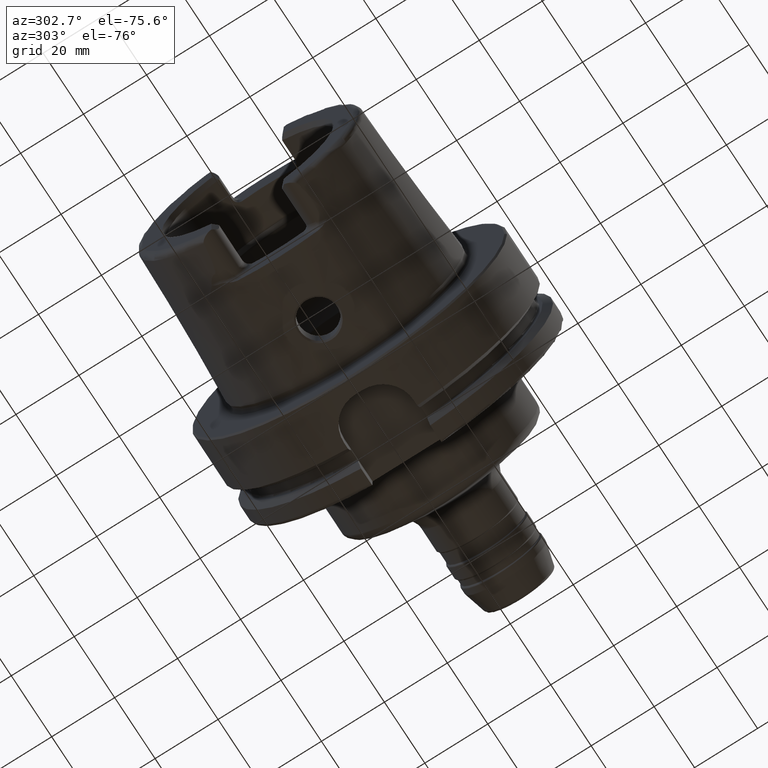
[diagram: clean part render]
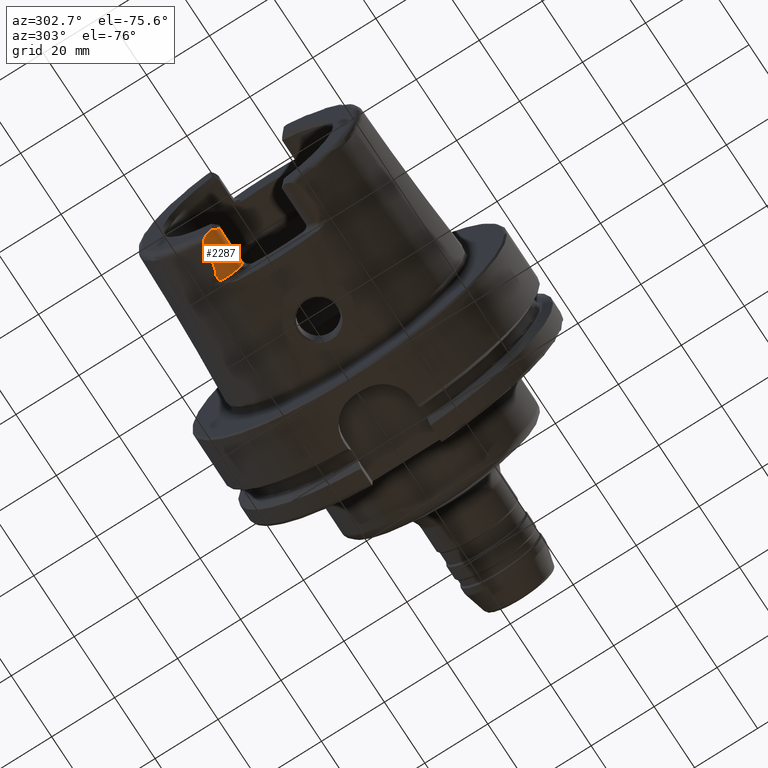
[diagram: same view with one face highlighted and labeled with its STEP entity id]
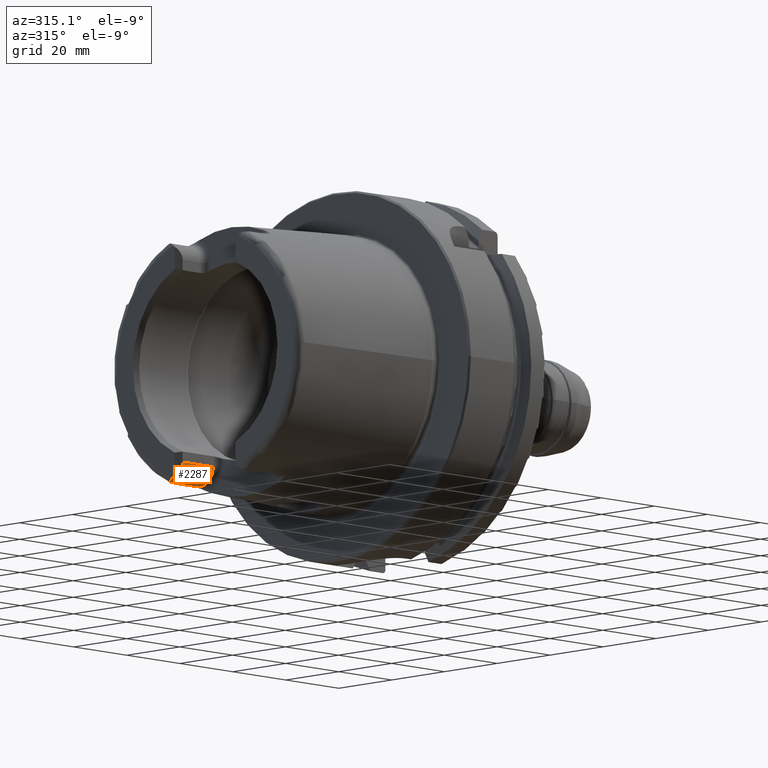
[diagram: same view with one face highlighted and labeled with its STEP entity id]
A machine part, auxiliary view. The second image highlights one B-rep face of the part: STEP entity #2287.
A second angle (auxiliary view) of the same face is appended — the face is thin or edge-on in the first view.
In plain terms, the highlighted cylindrical surface (edge-blend (fillet) strip) has radius 4.88 mm, axis along (-1, 0, 0).
Its self-contained STEP definition (entity closure, byte-faithful):
#31=B_SPLINE_CURVE_WITH_KNOTS('',3,(#3694,#3695,#3696,#3697,#3698,#3699,
#3700,#3701,#3702,#3703,#3704,#3705),.UNSPECIFIED.,.F.,.F.,(4,2,2,2,2,4),
(-0.744485085130335,-0.701284148098614,-0.656581713087918,-0.531183195108729,
-0.406814905045398,-0.320767863003946),.UNSPECIFIED.);
#32=B_SPLINE_CURVE_WITH_KNOTS('',3,(#3707,#3708,#3709,#3710,#3711,#3712,
#3713,#3714,#3715,#3716,#3717,#3718,#3719,#3720,#3721,#3722,#3723,#3724),
 .UNSPECIFIED.,.F.,.F.,(4,2,2,2,2,2,2,2,4),(1.82139636410114,1.83165892733975,
1.84192149057836,1.86244661705558,1.93660019990987,2.01075378276416,2.21475865094393,
2.41876351912369,2.7012608097453),.UNSPECIFIED.);
#85=ELLIPSE('',#2515,6.90136218438071,4.88);
#231=FACE_OUTER_BOUND('',#369,.T.);
#369=EDGE_LOOP('',(#1668,#1669,#1670,#1671,#1672,#1673,#1674,#1675));
#501=LINE('',#3686,#612);
#504=LINE('',#3726,#615);
#612=VECTOR('',#2972,10.);
#615=VECTOR('',#2979,10.);
#770=CIRCLE('',#2519,4.88);
#771=CIRCLE('',#2520,4.88);
#772=CIRCLE('',#2521,4.88);
#944=VERTEX_POINT('',#3676);
#945=VERTEX_POINT('',#3677);
#948=VERTEX_POINT('',#3685);
#950=VERTEX_POINT('',#3691);
#951=VERTEX_POINT('',#3693);
#952=VERTEX_POINT('',#3706);
#953=VERTEX_POINT('',#3725);
#954=VERTEX_POINT('',#3727);
#1211=EDGE_CURVE('',#944,#945,#85,.T.);
#1215=EDGE_CURVE('',#948,#945,#501,.T.);
#1218=EDGE_CURVE('',#950,#944,#770,.T.);
#1219=EDGE_CURVE('',#951,#950,#31,.T.);
#1220=EDGE_CURVE('',#952,#951,#32,.T.);
#1221=EDGE_CURVE('',#953,#952,#504,.T.);
#1222=EDGE_CURVE('',#954,#953,#771,.T.);
#1223=EDGE_CURVE('',#948,#954,#772,.T.);
#1668=ORIENTED_EDGE('',*,*,#1211,.F.);
#1669=ORIENTED_EDGE('',*,*,#1218,.F.);
#1670=ORIENTED_EDGE('',*,*,#1219,.F.);
#1671=ORIENTED_EDGE('',*,*,#1220,.F.);
#1672=ORIENTED_EDGE('',*,*,#1221,.F.);
#1673=ORIENTED_EDGE('',*,*,#1222,.F.);
#1674=ORIENTED_EDGE('',*,*,#1223,.F.);
#1675=ORIENTED_EDGE('',*,*,#1215,.T.);
#2223=CYLINDRICAL_SURFACE('',#2518,4.88);
#2287=ADVANCED_FACE('',(#231),#2223,.T.);
#2515=AXIS2_PLACEMENT_3D('',#3678,#2964,#2965);
#2518=AXIS2_PLACEMENT_3D('',#3690,#2975,#2976);
#2519=AXIS2_PLACEMENT_3D('',#3692,#2977,#2978);
#2520=AXIS2_PLACEMENT_3D('',#3728,#2980,#2981);
#2521=AXIS2_PLACEMENT_3D('',#3729,#2982,#2983);
#2964=DIRECTION('center_axis',(-0.707106781186547,-0.707106781186548,0.));
#2965=DIRECTION('ref_axis',(0.707106781186548,-0.707106781186547,1.20652596722626E-16));
#2972=DIRECTION('',(-1.,0.,0.));
#2975=DIRECTION('center_axis',(-1.,0.,0.));
#2976=DIRECTION('ref_axis',(0.,-0.477884921181368,0.878422450821629));
#2977=DIRECTION('center_axis',(-1.,0.,0.));
#2978=DIRECTION('ref_axis',(0.,-0.477884921181368,0.878422450821629));
#2979=DIRECTION('',(-1.,0.,0.));
#2980=DIRECTION('center_axis',(1.,0.,0.));
#2981=DIRECTION('ref_axis',(0.,0.477884921181368,-0.878422450821629));
#2982=DIRECTION('center_axis',(1.,0.,0.));
#2983=DIRECTION('ref_axis',(0.,-0.510937901715381,-0.8596176246394));
#3676=CARTESIAN_POINT('',(-50.,11.51,-30.8899431813596));
#3677=CARTESIAN_POINT('',(-48.5,10.01,-27.37));
#3678=CARTESIAN_POINT('Origin',(-53.38,14.89,-27.37));
#3685=CARTESIAN_POINT('',(-37.,10.01,-27.37));
#3686=CARTESIAN_POINT('',(-35.,10.01,-27.37));
#3690=CARTESIAN_POINT('Origin',(-35.,14.89,-27.37));
#3691=CARTESIAN_POINT('',(-50.,12.0743049948301,-31.355757348091));
#3692=CARTESIAN_POINT('Origin',(-50.,14.89,-27.37));
#3693=CARTESIAN_POINT('',(-48.1000748840304,15.0787152148571,-32.2463497175327));
#3694=CARTESIAN_POINT('Ctrl Pts',(-48.1000748840304,15.0787152148571,-32.2463497175327));
#3695=CARTESIAN_POINT('Ctrl Pts',(-48.2105289331959,15.0644723890649,-32.2469009162952));
#3696=CARTESIAN_POINT('Ctrl Pts',(-48.3152849211513,15.0274043790922,-32.2483365520296));
#3697=CARTESIAN_POINT('Ctrl Pts',(-48.5158350355592,14.9227249886344,-32.2501807122049));
#3698=CARTESIAN_POINT('Ctrl Pts',(-48.6114759122293,14.853948633775,-32.2504380099703));
#3699=CARTESIAN_POINT('Ctrl Pts',(-48.9444340259589,14.5699075364914,-32.2439932048825));
#3700=CARTESIAN_POINT('Ctrl Pts',(-49.1873237794489,14.2618237213855,-32.2229124522755));
#3701=CARTESIAN_POINT('Ctrl Pts',(-49.6096022065355,13.5557805634606,-32.0777680620402));
#3702=CARTESIAN_POINT('Ctrl Pts',(-49.7790094341757,13.1775605707035,-31.9575317726829));
#3703=CARTESIAN_POINT('Ctrl Pts',(-49.9573633441756,12.558596693048,-31.6661869684752));
#3704=CARTESIAN_POINT('Ctrl Pts',(-50.,12.3094122367882,-31.5218463066117));
#3705=CARTESIAN_POINT('Ctrl Pts',(-50.,12.0743049948301,-31.355757348091));
#3706=CARTESIAN_POINT('',(-39.3086860506441,17.2220784153651,-31.6567015600095));
#3707=CARTESIAN_POINT('Ctrl Pts',(-39.3086860506439,17.2220784153651,-31.6567015600096));
#3708=CARTESIAN_POINT('Ctrl Pts',(-39.3086860506439,17.1920288621925,-31.6730493074242));
#3709=CARTESIAN_POINT('Ctrl Pts',(-39.3149778656361,17.1622985367362,-31.6888083298259));
#3710=CARTESIAN_POINT('Ctrl Pts',(-39.3379356243704,17.1047575471073,-31.7185977246152));
#3711=CARTESIAN_POINT('Ctrl Pts',(-39.3545931085757,17.0769444761517,-31.7326299669));
#3712=CARTESIAN_POINT('Ctrl Pts',(-39.41492287308,16.9977687004959,-31.7717242618145));
#3713=CARTESIAN_POINT('Ctrl Pts',(-39.4690330405114,16.9505386197656,-31.7938497879436));
#3714=CARTESIAN_POINT('Ctrl Pts',(-39.7137538085318,16.7691556019457,-31.8763882092881));
#3715=CARTESIAN_POINT('Ctrl Pts',(-39.9557031082111,16.6668123685081,-31.9161154581445));
#3716=CARTESIAN_POINT('Ctrl Pts',(-40.4538120390228,16.4807891402054,-31.9844991546727));
#3717=CARTESIAN_POINT('Ctrl Pts',(-40.7121103138056,16.4018770942044,-32.0104206666339));
#3718=CARTESIAN_POINT('Ctrl Pts',(-41.6015350915672,16.1516844838416,-32.0879931345296));
#3719=CARTESIAN_POINT('Ctrl Pts',(-42.2774968259687,16.0065639510366,-32.1225120780024));
#3720=CARTESIAN_POINT('Ctrl Pts',(-43.6583569770469,15.7387900082285,-32.1775602969968));
#3721=CARTESIAN_POINT('Ctrl Pts',(-44.3638273319757,15.6187903492069,-32.19660809961));
#3722=CARTESIAN_POINT('Ctrl Pts',(-46.0708874643597,15.3507400024476,-32.2307282620297));
#3723=CARTESIAN_POINT('Ctrl Pts',(-47.0815953489825,15.2100460868363,-32.2412671998384));
#3724=CARTESIAN_POINT('Ctrl Pts',(-48.1000748840303,15.0787152148571,-32.2463497175327));
#3725=CARTESIAN_POINT('',(-37.,17.2220784153651,-31.6567015600095));
#3726=CARTESIAN_POINT('',(-35.,17.2220784153651,-31.6567015600095));
#3727=CARTESIAN_POINT('',(-37.,13.4017880550143,-32.0175396939458));
#3728=CARTESIAN_POINT('Origin',(-37.,14.89,-27.37));
#3729=CARTESIAN_POINT('Origin',(-37.,14.89,-27.37));